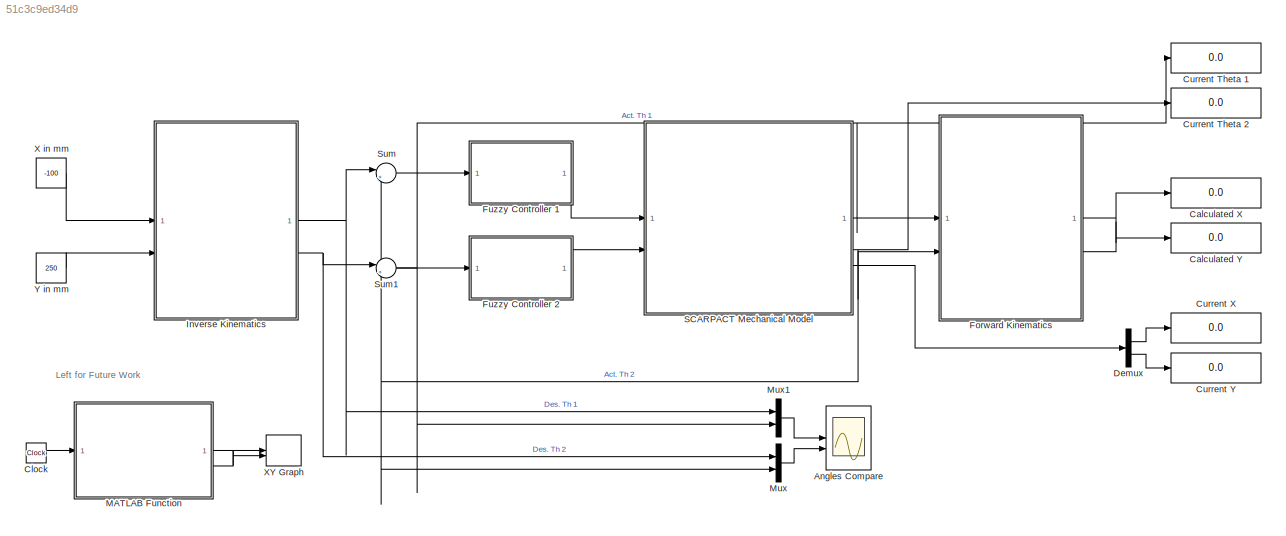
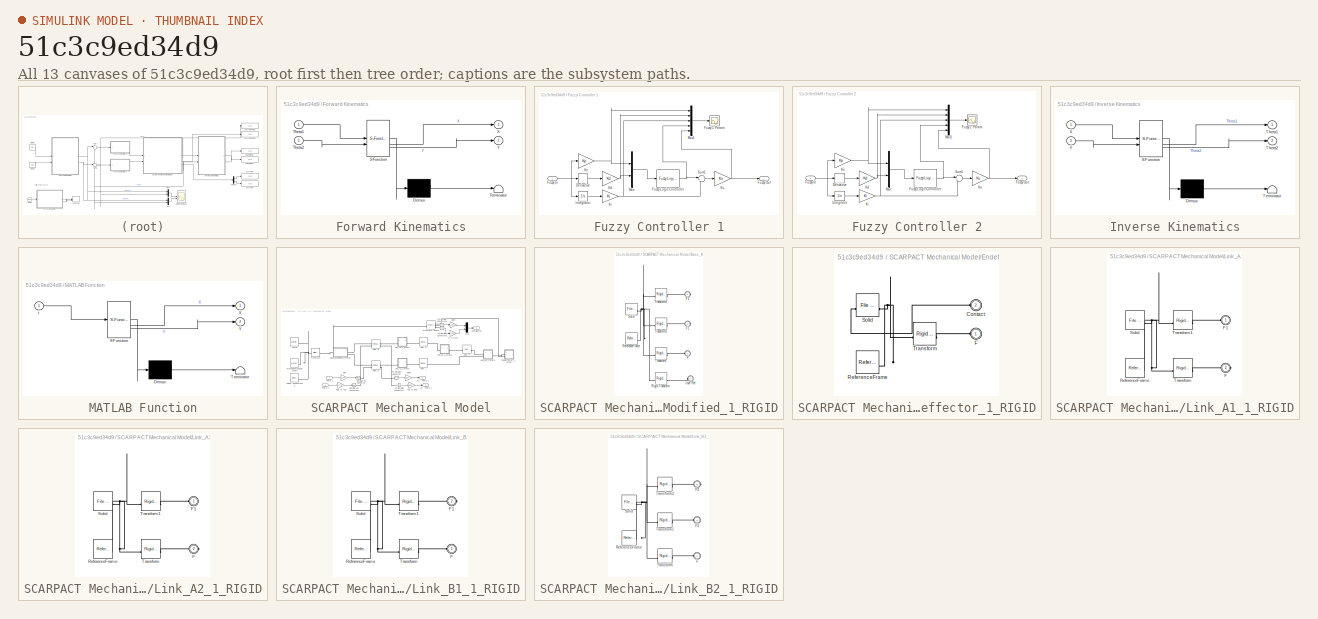
[diagram: thumbnail index - all 13 canvases of the model, root first then tree order]
MODEL slx_51c3c9ed34d9
KIND model
CONFIG AbsTol = auto
CONFIG EnableMultiTasking = off
CONFIG FixedStep = auto
CONFIG MaxStep = auto
CONFIG MinStep = auto
CONFIG PreLoadFcn = addpath("..\MATLAB\Scripts\")\ndisp("Pathes added successfully.")
CONFIG RelTol = 1e-3
CONFIG SampleTimeConstraint = Unconstrained
CONFIG SolverName = VariableStepAuto
CONFIG StartTime = 0.0
CONFIG StopTime = 10.0
WORKSPACE source: external: MATLAB File  (data not in archive)
BLOCK [Scope] Angles Compare
  Floating = off
  NumInputPorts = 2
  ScopeSpecificationString = Simulink.scopes.TimeScopeBlockCfg('CurrentConfiguration', extmgr.ConfigurationSet(extmgr.Configuration('Core','General UI',true),extmgr.Configuration('Core','Source UI',true),extmgr.Configuration('Sources','WiredSimulink',true),extmgr.Configuration('Visuals','Time Domain',true,'SerializedDisplays',{struct('MinYLimReal','-19.55366','MaxYLimReal','175.98294','YLabelReal','','MinYLimMag','0.00000','M...<+1562ch>
BLOCK [Display] Calculated X
  Decimation = 1
  NameLocation = right
BLOCK [Display] Calculated Y
  Decimation = 1
  NameLocation = right
BLOCK [Clock] Clock
  Commented = on
BLOCK [Display] Current Theta 1
  Decimation = 1
  NameLocation = right
BLOCK [Display] Current Theta 2
  Decimation = 1
  NameLocation = right
BLOCK [Display] Current X
  Decimation = 1
  NameLocation = right
BLOCK [Display] Current Y
  Decimation = 1
  NameLocation = right
BLOCK [Demux] Demux
  Outputs = 2
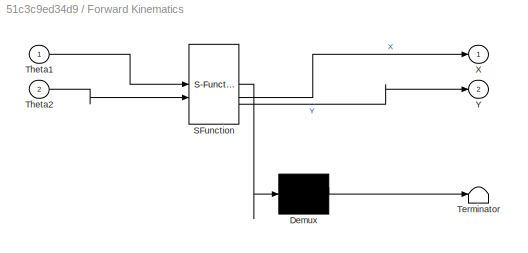
BLOCK [SubSystem] Forward Kinematics
  ErrorFcn = Stateflow.Translate.translate
  LibrarySourceBlock = simulink/User-Defined\nFunctions/MATLAB Function
  PermitHierarchicalResolution = ExplicitOnly
  SFBlockType = MATLAB Function
  TreatAsAtomicUnit = on
BLOCK [Demux] Forward Kinematics/ Demux 
  Outputs = 1
BLOCK [S-Function] Forward Kinematics/ SFunction 
  EnableBusSupport = on
  FunctionName = sf_sfun
  PortCounts = [2 3]
  SFcnIsStateOwnerBlock = off
  SFunctionDeploymentMode = off
  Tag = Stateflow S-Function 1
BLOCK [Terminator] Forward Kinematics/ Terminator 
BLOCK [Inport] Forward Kinematics/Theta1
BLOCK [Inport] Forward Kinematics/Theta2
  Port = 2
BLOCK [Outport] Forward Kinematics/X
BLOCK [Outport] Forward Kinematics/Y
  Port = 2
BLOCK [SubSystem] Fuzzy Controller 1
BLOCK [Derivative] Fuzzy Controller 1/Derivative
BLOCK [Scope] Fuzzy Controller 1/Fuzzy 1 Param
  Floating = off
  NumInputPorts = 1
  ScopeSpecificationString = Simulink.scopes.TimeScopeBlockCfg('CurrentConfiguration', extmgr.ConfigurationSet(extmgr.Configuration('Core','General UI',true),extmgr.Configuration('Core','Source UI',true),extmgr.Configuration('Sources','WiredSimulink',true,'DataLoggingVariableName','ScopeData2'),extmgr.Configuration('Visuals','Time Domain',true,'SerializedDisplays',{struct('MinYLimReal','-19.54337','MaxYLimReal','175.8903','YL...<+1870ch>
BLOCK [Inport] Fuzzy Controller 1/Fuzzy In
BLOCK [Reference] Fuzzy Controller 1/Fuzzy Logic Controller  REF=fuzblock/Fuzzy Logic   (lib defined in mdl_858b3b3e7478)
Controller
  SourceBlock = fuzblock/Fuzzy Logic \nController
  SourceType = Fuzzy Inference System
BLOCK [Outport] Fuzzy Controller 1/Fuzzy Out
BLOCK [Integrator] Fuzzy Controller 1/Integrator
BLOCK [Gain] Fuzzy Controller 1/Kd
  Gain = Kd
  NameLocation = top
BLOCK [Gain] Fuzzy Controller 1/Ke
  Gain = Kp
  NameLocation = top
BLOCK [Gain] Fuzzy Controller 1/Ki
  Gain = Ki
BLOCK [Gain] Fuzzy Controller 1/Ku
  Gain = Ku
BLOCK [Mux] Fuzzy Controller 1/Mux
  DisplayOption = bar
  Inputs = 2
BLOCK [Mux] Fuzzy Controller 1/Mux1
  DisplayOption = bar
  Inputs = 5
BLOCK [Sum] Fuzzy Controller 1/Sum1
  Inputs = |++
BLOCK [SubSystem] Fuzzy Controller 2
BLOCK [Derivative] Fuzzy Controller 2/Derivative
BLOCK [Scope] Fuzzy Controller 2/Fuzzy 1 Param
  Floating = off
  NumInputPorts = 1
  ScopeSpecificationString = Simulink.scopes.TimeScopeBlockCfg('CurrentConfiguration', extmgr.ConfigurationSet(extmgr.Configuration('Core','General UI',true),extmgr.Configuration('Core','Source UI',true),extmgr.Configuration('Sources','WiredSimulink',true,'DataLoggingVariableName','ScopeData2'),extmgr.Configuration('Visuals','Time Domain',true,'SerializedDisplays',{struct('MinYLimReal','-157937.0196','MaxYLimReal','17722.3680...<+1648ch>
BLOCK [Inport] Fuzzy Controller 2/Fuzzy In
BLOCK [Reference] Fuzzy Controller 2/Fuzzy Logic Controller  REF=fuzblock/Fuzzy Logic   (lib defined in mdl_858b3b3e7478)
Controller
  SourceBlock = fuzblock/Fuzzy Logic \nController
  SourceType = Fuzzy Inference System
BLOCK [Outport] Fuzzy Controller 2/Fuzzy Out
BLOCK [Integrator] Fuzzy Controller 2/Integrator
BLOCK [Gain] Fuzzy Controller 2/Kd
  Gain = Kd
  NameLocation = top
BLOCK [Gain] Fuzzy Controller 2/Ke
  Gain = Kp
  NameLocation = top
BLOCK [Gain] Fuzzy Controller 2/Ki
  Gain = Ki
BLOCK [Gain] Fuzzy Controller 2/Ku
  Gain = Ku
BLOCK [Mux] Fuzzy Controller 2/Mux
  DisplayOption = bar
  Inputs = 2
BLOCK [Mux] Fuzzy Controller 2/Mux1
  DisplayOption = bar
  Inputs = 5
BLOCK [Sum] Fuzzy Controller 2/Sum1
  Inputs = |++
BLOCK [SubSystem] Inverse Kinematics
  ErrorFcn = Stateflow.Translate.translate
  LibrarySourceBlock = simulink/User-Defined\nFunctions/MATLAB Function
  PermitHierarchicalResolution = ExplicitOnly
  SFBlockType = MATLAB Function
  TreatAsAtomicUnit = on
BLOCK [Demux] Inverse Kinematics/ Demux 
  Outputs = 1
BLOCK [S-Function] Inverse Kinematics/ SFunction 
  EnableBusSupport = on
  FunctionName = sf_sfun
  PortCounts = [2 3]
  SFcnIsStateOwnerBlock = off
  SFunctionDeploymentMode = off
  Tag = Stateflow S-Function 3
BLOCK [Terminator] Inverse Kinematics/ Terminator 
BLOCK [Outport] Inverse Kinematics/Theta1
BLOCK [Outport] Inverse Kinematics/Theta2
  Port = 2
BLOCK [Inport] Inverse Kinematics/X
BLOCK [Inport] Inverse Kinematics/Y
  Port = 2
BLOCK [SubSystem] MATLAB Function
  Commented = on
  ErrorFcn = Stateflow.Translate.translate
  LibrarySourceBlock = simulink/User-Defined\nFunctions/MATLAB Function
  PermitHierarchicalResolution = ExplicitOnly
  SFBlockType = MATLAB Function
  TreatAsAtomicUnit = on
BLOCK [Demux] MATLAB Function/ Demux 
  Outputs = 1
BLOCK [S-Function] MATLAB Function/ SFunction 
  EnableBusSupport = on
  FunctionName = sf_sfun
  PortCounts = [1 3]
  SFcnIsStateOwnerBlock = off
  SFunctionDeploymentMode = off
  Tag = Stateflow S-Function 2
BLOCK [Terminator] MATLAB Function/ Terminator 
BLOCK [Outport] MATLAB Function/X
BLOCK [Outport] MATLAB Function/Y
  Port = 2
BLOCK [Inport] MATLAB Function/t
BLOCK [Mux] Mux
  DisplayOption = bar
  Inputs = 2
BLOCK [Mux] Mux1
  DisplayOption = bar
  Inputs = 2
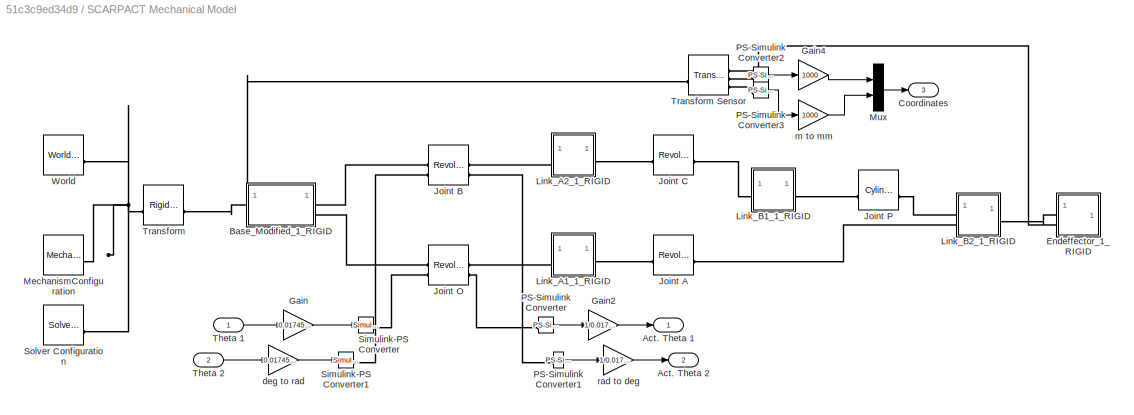
BLOCK [SubSystem] SCARPACT Mechanical Model
BLOCK [Outport] SCARPACT Mechanical Model/Act. Theta 1
BLOCK [Outport] SCARPACT Mechanical Model/Act. Theta 2
  Port = 2
BLOCK [SubSystem] SCARPACT Mechanical Model/Base_Modified_1_RIGID
BLOCK [PMIOPort] SCARPACT Mechanical Model/Base_Modified_1_RIGID/F
  Side = Left
BLOCK [PMIOPort] SCARPACT Mechanical Model/Base_Modified_1_RIGID/F1
  Port = 3
  Side = Right
BLOCK [PMIOPort] SCARPACT Mechanical Model/Base_Modified_1_RIGID/F2
  Port = 2
  Side = Right
BLOCK [Reference] SCARPACT Mechanical Model/Base_Modified_1_RIGID/ReferenceFrame  REF=sm_lib/Frames and
Transforms/Reference
Frame
  SourceBlock = sm_lib/Frames and\nTransforms/Reference\nFrame
  SourceType = Reference\nFrame
BLOCK [Reference] SCARPACT Mechanical Model/Base_Modified_1_RIGID/Rigid Transform  REF=sm_lib/Frames and
Transforms/Rigid
Transform
  SourceBlock = sm_lib/Frames and\nTransforms/Rigid\nTransform
  SourceType = Rigid\nTransform
BLOCK [Reference] SCARPACT Mechanical Model/Base_Modified_1_RIGID/Solid  REF=sm_lib/Body Elements/File Solid
  SourceBlock = sm_lib/Body Elements/File Solid
  SourceType = File Solid
BLOCK [Reference] SCARPACT Mechanical Model/Base_Modified_1_RIGID/Transform  REF=sm_lib/Frames and
Transforms/Rigid
Transform
  SourceBlock = sm_lib/Frames and\nTransforms/Rigid\nTransform
  SourceType = Rigid\nTransform
BLOCK [Reference] SCARPACT Mechanical Model/Base_Modified_1_RIGID/Transform1  REF=sm_lib/Frames and
Transforms/Rigid
Transform
  SourceBlock = sm_lib/Frames and\nTransforms/Rigid\nTransform
  SourceType = Rigid\nTransform
BLOCK [Reference] SCARPACT Mechanical Model/Base_Modified_1_RIGID/Transform2  REF=sm_lib/Frames and
Transforms/Rigid
Transform
  SourceBlock = sm_lib/Frames and\nTransforms/Rigid\nTransform
  SourceType = Rigid\nTransform
BLOCK [PMIOPort] SCARPACT Mechanical Model/Base_Modified_1_RIGID/User Ref
  Port = 4
  Side = Left
BLOCK [Outport] SCARPACT Mechanical Model/Coordinates
  Port = 3
BLOCK [SubSystem] SCARPACT Mechanical Model/Endeffector_1_RIGID
BLOCK [PMIOPort] SCARPACT Mechanical Model/Endeffector_1_RIGID/Contact
  Port = 2
  Side = Left
BLOCK [PMIOPort] SCARPACT Mechanical Model/Endeffector_1_RIGID/F
  Side = Left
BLOCK [Reference] SCARPACT Mechanical Model/Endeffector_1_RIGID/ReferenceFrame  REF=sm_lib/Frames and
Transforms/Reference
Frame
  SourceBlock = sm_lib/Frames and\nTransforms/Reference\nFrame
  SourceType = Reference\nFrame
BLOCK [Reference] SCARPACT Mechanical Model/Endeffector_1_RIGID/Solid  REF=sm_lib/Body Elements/File Solid
  SourceBlock = sm_lib/Body Elements/File Solid
  SourceType = File Solid
BLOCK [Reference] SCARPACT Mechanical Model/Endeffector_1_RIGID/Transform  REF=sm_lib/Frames and
Transforms/Rigid
Transform
  SourceBlock = sm_lib/Frames and\nTransforms/Rigid\nTransform
  SourceType = Rigid\nTransform
BLOCK [Gain] SCARPACT Mechanical Model/Gain
  Gain = 0.0174533
BLOCK [Gain] SCARPACT Mechanical Model/Gain2
  Gain = 1/0.0174533
BLOCK [Gain] SCARPACT Mechanical Model/Gain4
  Gain = 1000
BLOCK [Reference] SCARPACT Mechanical Model/Joint A  REF=sm_lib/Joints/Revolute Joint
  SourceBlock = sm_lib/Joints/Revolute Joint
  SourceType = Revolute Joint
BLOCK [Reference] SCARPACT Mechanical Model/Joint B  REF=sm_lib/Joints/Revolute Joint
  SourceBlock = sm_lib/Joints/Revolute Joint
  SourceType = Revolute Joint
BLOCK [Reference] SCARPACT Mechanical Model/Joint C  REF=sm_lib/Joints/Revolute Joint
  SourceBlock = sm_lib/Joints/Revolute Joint
  SourceType = Revolute Joint
BLOCK [Reference] SCARPACT Mechanical Model/Joint O  REF=sm_lib/Joints/Revolute Joint
  SourceBlock = sm_lib/Joints/Revolute Joint
  SourceType = Revolute Joint
BLOCK [Reference] SCARPACT Mechanical Model/Joint P  REF=sm_lib/Joints/Cylindrical
Joint
  SourceBlock = sm_lib/Joints/Cylindrical\nJoint
  SourceType = Cylindrical\nJoint
BLOCK [SubSystem] SCARPACT Mechanical Model/Link_A1_1_RIGID
BLOCK [PMIOPort] SCARPACT Mechanical Model/Link_A1_1_RIGID/F
  Port = 2
  Side = Right
BLOCK [PMIOPort] SCARPACT Mechanical Model/Link_A1_1_RIGID/F1
  Side = Left
BLOCK [Reference] SCARPACT Mechanical Model/Link_A1_1_RIGID/ReferenceFrame  REF=sm_lib/Frames and
Transforms/Reference
Frame
  SourceBlock = sm_lib/Frames and\nTransforms/Reference\nFrame
  SourceType = Reference\nFrame
BLOCK [Reference] SCARPACT Mechanical Model/Link_A1_1_RIGID/Solid  REF=sm_lib/Body Elements/File Solid
  SourceBlock = sm_lib/Body Elements/File Solid
  SourceType = File Solid
BLOCK [Reference] SCARPACT Mechanical Model/Link_A1_1_RIGID/Transform  REF=sm_lib/Frames and
Transforms/Rigid
Transform
  SourceBlock = sm_lib/Frames and\nTransforms/Rigid\nTransform
  SourceType = Rigid\nTransform
BLOCK [Reference] SCARPACT Mechanical Model/Link_A1_1_RIGID/Transform1  REF=sm_lib/Frames and
Transforms/Rigid
Transform
  SourceBlock = sm_lib/Frames and\nTransforms/Rigid\nTransform
  SourceType = Rigid\nTransform
BLOCK [SubSystem] SCARPACT Mechanical Model/Link_A2_1_RIGID
BLOCK [PMIOPort] SCARPACT Mechanical Model/Link_A2_1_RIGID/F
  Port = 2
  Side = Right
BLOCK [PMIOPort] SCARPACT Mechanical Model/Link_A2_1_RIGID/F1
  Side = Left
BLOCK [Reference] SCARPACT Mechanical Model/Link_A2_1_RIGID/ReferenceFrame  REF=sm_lib/Frames and
Transforms/Reference
Frame
  SourceBlock = sm_lib/Frames and\nTransforms/Reference\nFrame
  SourceType = Reference\nFrame
BLOCK [Reference] SCARPACT Mechanical Model/Link_A2_1_RIGID/Solid  REF=sm_lib/Body Elements/File Solid
  SourceBlock = sm_lib/Body Elements/File Solid
  SourceType = File Solid
BLOCK [Reference] SCARPACT Mechanical Model/Link_A2_1_RIGID/Transform  REF=sm_lib/Frames and
Transforms/Rigid
Transform
  SourceBlock = sm_lib/Frames and\nTransforms/Rigid\nTransform
  SourceType = Rigid\nTransform
BLOCK [Reference] SCARPACT Mechanical Model/Link_A2_1_RIGID/Transform1  REF=sm_lib/Frames and
Transforms/Rigid
Transform
  SourceBlock = sm_lib/Frames and\nTransforms/Rigid\nTransform
  SourceType = Rigid\nTransform
BLOCK [SubSystem] SCARPACT Mechanical Model/Link_B1_1_RIGID
BLOCK [PMIOPort] SCARPACT Mechanical Model/Link_B1_1_RIGID/F
  Side = Left
BLOCK [PMIOPort] SCARPACT Mechanical Model/Link_B1_1_RIGID/F1
  Port = 2
  Side = Right
BLOCK [Reference] SCARPACT Mechanical Model/Link_B1_1_RIGID/ReferenceFrame  REF=sm_lib/Frames and
Transforms/Reference
Frame
  SourceBlock = sm_lib/Frames and\nTransforms/Reference\nFrame
  SourceType = Reference\nFrame
BLOCK [Reference] SCARPACT Mechanical Model/Link_B1_1_RIGID/Solid  REF=sm_lib/Body Elements/File Solid
  SourceBlock = sm_lib/Body Elements/File Solid
  SourceType = File Solid
BLOCK [Reference] SCARPACT Mechanical Model/Link_B1_1_RIGID/Transform  REF=sm_lib/Frames and
Transforms/Rigid
Transform
  SourceBlock = sm_lib/Frames and\nTransforms/Rigid\nTransform
  SourceType = Rigid\nTransform
BLOCK [Reference] SCARPACT Mechanical Model/Link_B1_1_RIGID/Transform1  REF=sm_lib/Frames and
Transforms/Rigid
Transform
  SourceBlock = sm_lib/Frames and\nTransforms/Rigid\nTransform
  SourceType = Rigid\nTransform
BLOCK [SubSystem] SCARPACT Mechanical Model/Link_B2_1_RIGID
BLOCK [PMIOPort] SCARPACT Mechanical Model/Link_B2_1_RIGID/F
  Port = 2
  Side = Left
BLOCK [PMIOPort] SCARPACT Mechanical Model/Link_B2_1_RIGID/F1
  Side = Left
BLOCK [PMIOPort] SCARPACT Mechanical Model/Link_B2_1_RIGID/F2
  Port = 3
  Side = Right
BLOCK [Reference] SCARPACT Mechanical Model/Link_B2_1_RIGID/ReferenceFrame  REF=sm_lib/Frames and
Transforms/Reference
Frame
  SourceBlock = sm_lib/Frames and\nTransforms/Reference\nFrame
  SourceType = Reference\nFrame
BLOCK [Reference] SCARPACT Mechanical Model/Link_B2_1_RIGID/Solid  REF=sm_lib/Body Elements/File Solid
  SourceBlock = sm_lib/Body Elements/File Solid
  SourceType = File Solid
BLOCK [Reference] SCARPACT Mechanical Model/Link_B2_1_RIGID/Transform  REF=sm_lib/Frames and
Transforms/Rigid
Transform
  SourceBlock = sm_lib/Frames and\nTransforms/Rigid\nTransform
  SourceType = Rigid\nTransform
BLOCK [Reference] SCARPACT Mechanical Model/Link_B2_1_RIGID/Transform1  REF=sm_lib/Frames and
Transforms/Rigid
Transform
  SourceBlock = sm_lib/Frames and\nTransforms/Rigid\nTransform
  SourceType = Rigid\nTransform
BLOCK [Reference] SCARPACT Mechanical Model/Link_B2_1_RIGID/Transform2  REF=sm_lib/Frames and
Transforms/Rigid
Transform
  SourceBlock = sm_lib/Frames and\nTransforms/Rigid\nTransform
  SourceType = Rigid\nTransform
BLOCK [Reference] SCARPACT Mechanical Model/MechanismConfiguration  REF=sm_lib/Utilities/Mechanism
Configuration
  SourceBlock = sm_lib/Utilities/Mechanism\nConfiguration
  SourceType = Mechanism\nConfiguration
BLOCK [Mux] SCARPACT Mechanical Model/Mux
  DisplayOption = bar
  Inputs = 2
BLOCK [Reference] SCARPACT Mechanical Model/PS-Simulink Converter  REF=nesl_utility/PS-Simulink
Converter
  SourceBlock = nesl_utility/PS-Simulink\nConverter
  SourceType = PS-Simulink\nConverter
BLOCK [Reference] SCARPACT Mechanical Model/PS-Simulink Converter1  REF=nesl_utility/PS-Simulink
Converter
  SourceBlock = nesl_utility/PS-Simulink\nConverter
  SourceType = PS-Simulink\nConverter
BLOCK [Reference] SCARPACT Mechanical Model/PS-Simulink Converter2  REF=nesl_utility/PS-Simulink
Converter
  SourceBlock = nesl_utility/PS-Simulink\nConverter
  SourceType = PS-Simulink\nConverter
BLOCK [Reference] SCARPACT Mechanical Model/PS-Simulink Converter3  REF=nesl_utility/PS-Simulink
Converter
  SourceBlock = nesl_utility/PS-Simulink\nConverter
  SourceType = PS-Simulink\nConverter
BLOCK [Reference] SCARPACT Mechanical Model/Simulink-PS Converter  REF=nesl_utility/Simulink-PS
Converter
  SourceBlock = nesl_utility/Simulink-PS\nConverter
  SourceType = Simulink-PS\nConverter
BLOCK [Reference] SCARPACT Mechanical Model/Simulink-PS Converter1  REF=nesl_utility/Simulink-PS
Converter
  SourceBlock = nesl_utility/Simulink-PS\nConverter
  SourceType = Simulink-PS\nConverter
BLOCK [Reference] SCARPACT Mechanical Model/Solver Configuration  REF=nesl_utility/Solver
Configuration
  SourceBlock = nesl_utility/Solver\nConfiguration
  SourceType = Solver\nConfiguration
BLOCK [Inport] SCARPACT Mechanical Model/Theta 1
BLOCK [Inport] SCARPACT Mechanical Model/Theta 2
  Port = 2
BLOCK [Reference] SCARPACT Mechanical Model/Transform  REF=sm_lib/Frames and
Transforms/Rigid
Transform
  SourceBlock = sm_lib/Frames and\nTransforms/Rigid\nTransform
  SourceType = Rigid\nTransform
BLOCK [Reference] SCARPACT Mechanical Model/Transform Sensor  REF=sm_lib/Frames and
Transforms/Transform
Sensor
  SourceBlock = sm_lib/Frames and\nTransforms/Transform\nSensor
  SourceType = Transform\nSensor
BLOCK [Reference] SCARPACT Mechanical Model/World  REF=sm_lib/Frames and
Transforms/World Frame
  SourceBlock = sm_lib/Frames and\nTransforms/World Frame
  SourceType = World Frame
BLOCK [Gain] SCARPACT Mechanical Model/deg to rad
  Gain = 0.0174533
BLOCK [Gain] SCARPACT Mechanical Model/m to mm
  Gain = 1000
BLOCK [Gain] SCARPACT Mechanical Model/rad to deg
  Gain = 1/0.0174533
BLOCK [Sum] Sum
  Inputs = |+-
BLOCK [Sum] Sum1
  Inputs = |+-
BLOCK [Constant] X in mm
  Value = -100
BLOCK [Record] XY Graph
  Commented = on
  CompatibilityTag = XY
  FileSettingsInternal = {"entries":[{"content":{"excelSettings":{"content":{},"type":"Streamout.ExcelSettings"}},"type":"Streamout.FileSettingStorage","uuid":"7f56f7b1-8cd2-474b-8b61-8dfd49f60ec3"}],"packageUris":["http://schema.mathworks.com/mf0/streamout_blocks/R2020a"],"version":"1.0"}
  Layout = [1 1]
  SignalsInternal = {"entries":[{"content":{"signals":[{"content":{"blockPath":["Control_System/XY Graph"],"dimensions":[1],"domain":"Control_System/XY Graph","lineColor":"#a2142f","plots":[1],"port":1,"signalID":17,"signalName":"MATLAB Function:1"},"type":"RecordBlkView.Signal","uuid":"6f10efca-12eb-48c8-b754-9b73a79ffb15"},{"content":{"blockPath":["Control_System/XY Graph"],"dimensions":[1],"domain":"Control_System...<+355ch>
  VisualizationBindings = {"xyplotplugin":{"info":[{"series":[{"bindingParametersList":[{"parameter":"X-Axis","signalID":17,"signalName":"MATLAB Function:1"},{"parameter":"Y-Axis","signalID":20,"signalName":"MATLAB Function:2"}],"seriesID":9264}],"subplotID":1}]}}
BLOCK [Constant] Y in mm
  Value = 250
ANNOTATION (root): Left for Future Work
LINE Clock:1 -> MATLAB Function:1
LINE Demux:1 -> Current X:1
LINE Demux:2 -> Current Y:1
LINE Forward Kinematics:1 -> Calculated X:1
LINE Forward Kinematics:2 -> Calculated Y:1
LINE Fuzzy Controller 1/Derivative:1 -> Fuzzy Controller 1/Kd:1
NET Fuzzy Controller 1/Fuzzy In:1 -> Fuzzy Controller 1/Derivative:1, Fuzzy Controller 1/Integrator:1, Fuzzy Controller 1/Ke:1
NET Fuzzy Controller 1/Fuzzy Logic Controller:1 -> Fuzzy Controller 1/Mux1:4, Fuzzy Controller 1/Sum1:1
LINE Fuzzy Controller 1/Integrator:1 -> Fuzzy Controller 1/Ki:1
NET Fuzzy Controller 1/Kd:1 -> Fuzzy Controller 1/Mux1:2, Fuzzy Controller 1/Mux:2
NET Fuzzy Controller 1/Ke:1 -> Fuzzy Controller 1/Mux1:1, Fuzzy Controller 1/Mux:1
NET Fuzzy Controller 1/Ki:1 -> Fuzzy Controller 1/Mux1:3, Fuzzy Controller 1/Sum1:2
NET Fuzzy Controller 1/Ku:1 -> Fuzzy Controller 1/Fuzzy Out:1, Fuzzy Controller 1/Mux1:5
LINE Fuzzy Controller 1/Mux1:1 -> Fuzzy Controller 1/Fuzzy 1 Param:1
LINE Fuzzy Controller 1/Mux:1 -> Fuzzy Controller 1/Fuzzy Logic Controller:1
LINE Fuzzy Controller 1/Sum1:1 -> Fuzzy Controller 1/Ku:1
LINE Fuzzy Controller 1:1 -> SCARPACT Mechanical Model:1
LINE Fuzzy Controller 2/Derivative:1 -> Fuzzy Controller 2/Kd:1
NET Fuzzy Controller 2/Fuzzy In:1 -> Fuzzy Controller 2/Derivative:1, Fuzzy Controller 2/Integrator:1, Fuzzy Controller 2/Ke:1
NET Fuzzy Controller 2/Fuzzy Logic Controller:1 -> Fuzzy Controller 2/Mux1:4, Fuzzy Controller 2/Sum1:1
LINE Fuzzy Controller 2/Integrator:1 -> Fuzzy Controller 2/Ki:1
NET Fuzzy Controller 2/Kd:1 -> Fuzzy Controller 2/Mux1:2, Fuzzy Controller 2/Mux:2
NET Fuzzy Controller 2/Ke:1 -> Fuzzy Controller 2/Mux1:1, Fuzzy Controller 2/Mux:1
NET Fuzzy Controller 2/Ki:1 -> Fuzzy Controller 2/Mux1:3, Fuzzy Controller 2/Sum1:2
NET Fuzzy Controller 2/Ku:1 -> Fuzzy Controller 2/Fuzzy Out:1, Fuzzy Controller 2/Mux1:5
LINE Fuzzy Controller 2/Mux1:1 -> Fuzzy Controller 2/Fuzzy 1 Param:1
LINE Fuzzy Controller 2/Mux:1 -> Fuzzy Controller 2/Fuzzy Logic Controller:1
LINE Fuzzy Controller 2/Sum1:1 -> Fuzzy Controller 2/Ku:1
LINE Fuzzy Controller 2:1 -> SCARPACT Mechanical Model:2
NET Inverse Kinematics:1 -> Mux1:1, Sum:1
NET Inverse Kinematics:2 -> Mux:1, Sum1:1
LINE MATLAB Function:1 -> XY Graph:1
LINE MATLAB Function:2 -> XY Graph:2
LINE Mux1:1 -> Angles Compare:1
LINE Mux:1 -> Angles Compare:2
LINE SCARPACT Mechanical Model/Gain2:1 -> SCARPACT Mechanical Model/Act. Theta 1:1
LINE SCARPACT Mechanical Model/Gain4:1 -> SCARPACT Mechanical Model/Mux:1
LINE SCARPACT Mechanical Model/Gain:1 -> SCARPACT Mechanical Model/Simulink-PS Converter:1
LINE SCARPACT Mechanical Model/Mux:1 -> SCARPACT Mechanical Model/Coordinates:1
LINE SCARPACT Mechanical Model/PS-Simulink Converter1:1 -> SCARPACT Mechanical Model/rad to deg:1
LINE SCARPACT Mechanical Model/PS-Simulink Converter2:1 -> SCARPACT Mechanical Model/Gain4:1
LINE SCARPACT Mechanical Model/PS-Simulink Converter3:1 -> SCARPACT Mechanical Model/m to mm:1
LINE SCARPACT Mechanical Model/PS-Simulink Converter:1 -> SCARPACT Mechanical Model/Gain2:1
LINE SCARPACT Mechanical Model/Theta 1:1 -> SCARPACT Mechanical Model/Gain:1
LINE SCARPACT Mechanical Model/Theta 2:1 -> SCARPACT Mechanical Model/deg to rad:1
LINE SCARPACT Mechanical Model/deg to rad:1 -> SCARPACT Mechanical Model/Simulink-PS Converter1:1
LINE SCARPACT Mechanical Model/m to mm:1 -> SCARPACT Mechanical Model/Mux:2
LINE SCARPACT Mechanical Model/rad to deg:1 -> SCARPACT Mechanical Model/Act. Theta 2:1
NET SCARPACT Mechanical Model:1 -> Current Theta 1:1, Forward Kinematics:1, Mux1:2, Sum:2
NET SCARPACT Mechanical Model:2 -> Current Theta 2:1, Forward Kinematics:2, Mux:2, Sum1:2
LINE SCARPACT Mechanical Model:3 -> Demux:1
LINE Sum1:1 -> Fuzzy Controller 2:1
LINE Sum:1 -> Fuzzy Controller 1:1
LINE X in mm:1 -> Inverse Kinematics:1
LINE Y in mm:1 -> Inverse Kinematics:2
PLINE SCARPACT Mechanical Model/Base_Modified_1_RIGID/F1:RConn1 -- SCARPACT Mechanical Model/Base_Modified_1_RIGID/Transform1:RConn1
PLINE SCARPACT Mechanical Model/Base_Modified_1_RIGID/F2:RConn1 -- SCARPACT Mechanical Model/Base_Modified_1_RIGID/Transform2:RConn1
PLINE SCARPACT Mechanical Model/Base_Modified_1_RIGID/F:RConn1 -- SCARPACT Mechanical Model/Base_Modified_1_RIGID/Transform:RConn1
PNET net1: SCARPACT Mechanical Model/Base_Modified_1_RIGID/ReferenceFrame:RConn1 -- SCARPACT Mechanical Model/Base_Modified_1_RIGID/Rigid Transform:LConn1 -- SCARPACT Mechanical Model/Base_Modified_1_RIGID/Solid:RConn1 -- SCARPACT Mechanical Model/Base_Modified_1_RIGID/Transform1:LConn1 -- SCARPACT Mechanical Model/Base_Modified_1_RIGID/Transform2:LConn1 -- SCARPACT Mechanical Model/Base_Modified_1_RIGID/Transform:LConn1
PLINE SCARPACT Mechanical Model/Base_Modified_1_RIGID/Rigid Transform:RConn1 -- SCARPACT Mechanical Model/Base_Modified_1_RIGID/User Ref:RConn1
PLINE SCARPACT Mechanical Model/Base_Modified_1_RIGID:LConn1 -- SCARPACT Mechanical Model/Transform:RConn1
PLINE SCARPACT Mechanical Model/Base_Modified_1_RIGID:LConn2 -- SCARPACT Mechanical Model/Transform Sensor:LConn1
PLINE SCARPACT Mechanical Model/Base_Modified_1_RIGID:RConn1 -- SCARPACT Mechanical Model/Joint B:LConn1
PLINE SCARPACT Mechanical Model/Base_Modified_1_RIGID:RConn2 -- SCARPACT Mechanical Model/Joint O:LConn1
PLINE SCARPACT Mechanical Model/Endeffector_1_RIGID/Contact:RConn1 -- SCARPACT Mechanical Model/Endeffector_1_RIGID/Solid:LConn1
PLINE SCARPACT Mechanical Model/Endeffector_1_RIGID/F:RConn1 -- SCARPACT Mechanical Model/Endeffector_1_RIGID/Transform:RConn1
PNET net2: SCARPACT Mechanical Model/Endeffector_1_RIGID/ReferenceFrame:RConn1 -- SCARPACT Mechanical Model/Endeffector_1_RIGID/Solid:RConn1 -- SCARPACT Mechanical Model/Endeffector_1_RIGID/Transform:LConn1
PLINE SCARPACT Mechanical Model/Endeffector_1_RIGID:LConn1 -- SCARPACT Mechanical Model/Link_B2_1_RIGID:RConn1
PLINE SCARPACT Mechanical Model/Endeffector_1_RIGID:LConn2 -- SCARPACT Mechanical Model/Transform Sensor:RConn1
PLINE SCARPACT Mechanical Model/Joint A:LConn1 -- SCARPACT Mechanical Model/Link_A1_1_RIGID:RConn1
PLINE SCARPACT Mechanical Model/Joint A:RConn1 -- SCARPACT Mechanical Model/Link_B2_1_RIGID:LConn2
PLINE SCARPACT Mechanical Model/Joint B:LConn2 -- SCARPACT Mechanical Model/Simulink-PS Converter1:RConn1
PLINE SCARPACT Mechanical Model/Joint B:RConn1 -- SCARPACT Mechanical Model/Link_A2_1_RIGID:LConn1
PLINE SCARPACT Mechanical Model/Joint B:RConn2 -- SCARPACT Mechanical Model/PS-Simulink Converter1:LConn1
PLINE SCARPACT Mechanical Model/Joint C:LConn1 -- SCARPACT Mechanical Model/Link_A2_1_RIGID:RConn1
PLINE SCARPACT Mechanical Model/Joint C:RConn1 -- SCARPACT Mechanical Model/Link_B1_1_RIGID:LConn1
PLINE SCARPACT Mechanical Model/Joint O:LConn2 -- SCARPACT Mechanical Model/Simulink-PS Converter:RConn1
PLINE SCARPACT Mechanical Model/Joint O:RConn1 -- SCARPACT Mechanical Model/Link_A1_1_RIGID:LConn1
PLINE SCARPACT Mechanical Model/Joint O:RConn2 -- SCARPACT Mechanical Model/PS-Simulink Converter:LConn1
PLINE SCARPACT Mechanical Model/Joint P:LConn1 -- SCARPACT Mechanical Model/Link_B1_1_RIGID:RConn1
PLINE SCARPACT Mechanical Model/Joint P:RConn1 -- SCARPACT Mechanical Model/Link_B2_1_RIGID:LConn1
PLINE SCARPACT Mechanical Model/Link_A1_1_RIGID/F1:RConn1 -- SCARPACT Mechanical Model/Link_A1_1_RIGID/Transform1:RConn1
PLINE SCARPACT Mechanical Model/Link_A1_1_RIGID/F:RConn1 -- SCARPACT Mechanical Model/Link_A1_1_RIGID/Transform:RConn1
PNET net3: SCARPACT Mechanical Model/Link_A1_1_RIGID/ReferenceFrame:RConn1 -- SCARPACT Mechanical Model/Link_A1_1_RIGID/Solid:RConn1 -- SCARPACT Mechanical Model/Link_A1_1_RIGID/Transform1:LConn1 -- SCARPACT Mechanical Model/Link_A1_1_RIGID/Transform:LConn1
PLINE SCARPACT Mechanical Model/Link_A2_1_RIGID/F1:RConn1 -- SCARPACT Mechanical Model/Link_A2_1_RIGID/Transform1:RConn1
PLINE SCARPACT Mechanical Model/Link_A2_1_RIGID/F:RConn1 -- SCARPACT Mechanical Model/Link_A2_1_RIGID/Transform:RConn1
PNET net4: SCARPACT Mechanical Model/Link_A2_1_RIGID/ReferenceFrame:RConn1 -- SCARPACT Mechanical Model/Link_A2_1_RIGID/Solid:RConn1 -- SCARPACT Mechanical Model/Link_A2_1_RIGID/Transform1:LConn1 -- SCARPACT Mechanical Model/Link_A2_1_RIGID/Transform:LConn1
PLINE SCARPACT Mechanical Model/Link_B1_1_RIGID/F1:RConn1 -- SCARPACT Mechanical Model/Link_B1_1_RIGID/Transform1:RConn1
PLINE SCARPACT Mechanical Model/Link_B1_1_RIGID/F:RConn1 -- SCARPACT Mechanical Model/Link_B1_1_RIGID/Transform:RConn1
PNET net5: SCARPACT Mechanical Model/Link_B1_1_RIGID/ReferenceFrame:RConn1 -- SCARPACT Mechanical Model/Link_B1_1_RIGID/Solid:RConn1 -- SCARPACT Mechanical Model/Link_B1_1_RIGID/Transform1:LConn1 -- SCARPACT Mechanical Model/Link_B1_1_RIGID/Transform:LConn1
PLINE SCARPACT Mechanical Model/Link_B2_1_RIGID/F1:RConn1 -- SCARPACT Mechanical Model/Link_B2_1_RIGID/Transform1:RConn1
PLINE SCARPACT Mechanical Model/Link_B2_1_RIGID/F2:RConn1 -- SCARPACT Mechanical Model/Link_B2_1_RIGID/Transform2:RConn1
PLINE SCARPACT Mechanical Model/Link_B2_1_RIGID/F:RConn1 -- SCARPACT Mechanical Model/Link_B2_1_RIGID/Transform:RConn1
PNET net6: SCARPACT Mechanical Model/Link_B2_1_RIGID/ReferenceFrame:RConn1 -- SCARPACT Mechanical Model/Link_B2_1_RIGID/Solid:RConn1 -- SCARPACT Mechanical Model/Link_B2_1_RIGID/Transform1:LConn1 -- SCARPACT Mechanical Model/Link_B2_1_RIGID/Transform2:LConn1 -- SCARPACT Mechanical Model/Link_B2_1_RIGID/Transform:LConn1
PNET net7: SCARPACT Mechanical Model/MechanismConfiguration:RConn1 -- SCARPACT Mechanical Model/Solver Configuration:RConn1 -- SCARPACT Mechanical Model/Transform:LConn1 -- SCARPACT Mechanical Model/World:RConn1
PLINE SCARPACT Mechanical Model/PS-Simulink Converter2:LConn1 -- SCARPACT Mechanical Model/Transform Sensor:RConn2
PLINE SCARPACT Mechanical Model/PS-Simulink Converter3:LConn1 -- SCARPACT Mechanical Model/Transform Sensor:RConn3
note: NET lines group one-source signal fan-out (src -> all destinations, sorted); 1:1 wires keep LINE; PNET lines group multi-terminal physical nets as a canonical sorted terminal list (undirected conserving connections); 2-terminal nets keep the pairwise PLINE form
CHART MATLAB Function states=1 transitions=1
  STATE_LABEL 'eML_blk_kernel()'
  STATE_LABEL 'SCRIPT:\nfunction [X, Y] = desired_trajectory(t)\nphaseOff= pi/2;\namp = 0.5;\nxOff = 1;\nyOff = 0;\n\nX = xOff + amp*sin((2*pi/5)*t+ phaseOff);\nY = yOff + amp*cos((2*pi/5)*t+ phaseOff);\n'
CHART Inverse Kinematics states=1 transitions=1
  STATE_LABEL 'eML_blk_kernel()'
  STATE_LABEL 'SCRIPT:\nfunction [Theta1, Theta2] = func1(X, Y)\n%{\nFUNC1 Calls the "inverse_kinematics()" function saved in "Scripts" folder\nin project MATLAB directory.\n%}\n\n[Theta1, Theta2] = inverse_kinematics(X, Y);\n\nend\n\n'
CHART Forward Kinematics states=1 transitions=1
  STATE_LABEL 'eML_blk_kernel()'
  STATE_LABEL 'SCRIPT:\nfunction [X, Y] = func2(Theta1, Theta2)\n%{\nFUNC2 Calls the "forward_kinematics()" function saved in "Scripts" folder\nin project MATLAB directory.\n%}\n\n[X, Y] = forward_kinematics(Theta1, Theta2);\n\nend'
CHART  states=0 transitions=0
CHART  states=0 transitions=0
CHART  states=0 transitions=0
